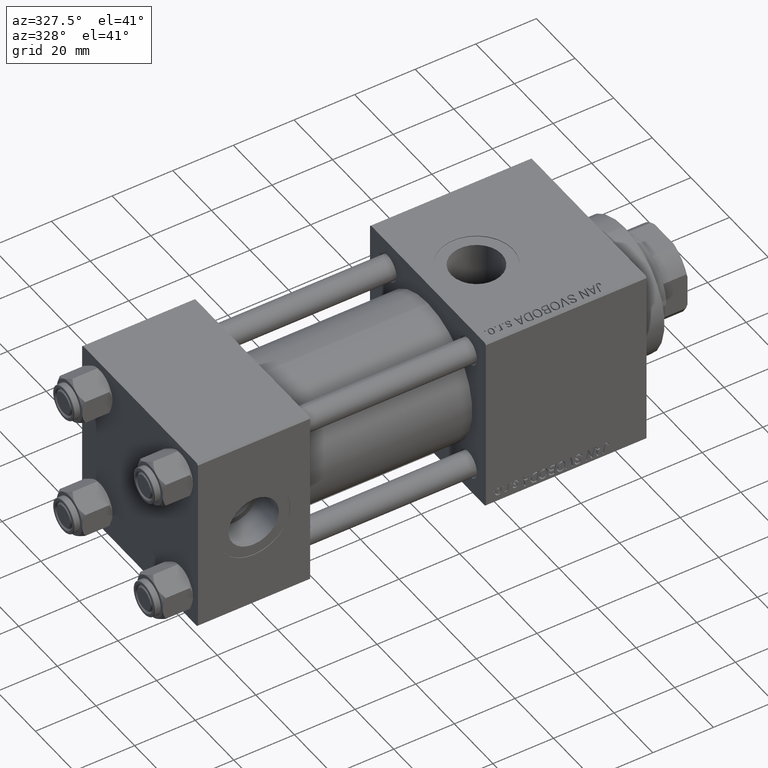
[diagram: clean part render]
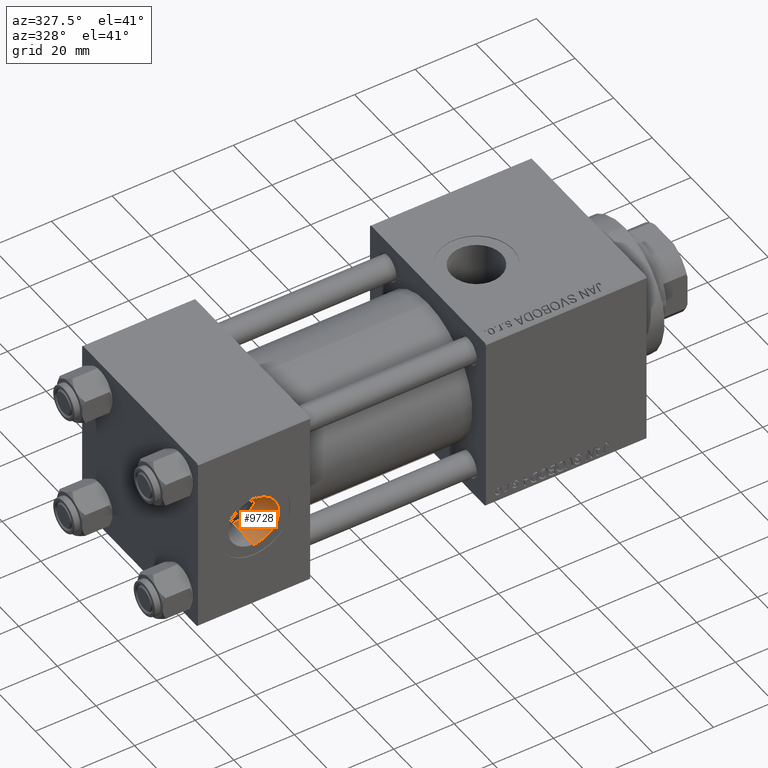
[diagram: same view with one face highlighted and labeled with its STEP entity id]
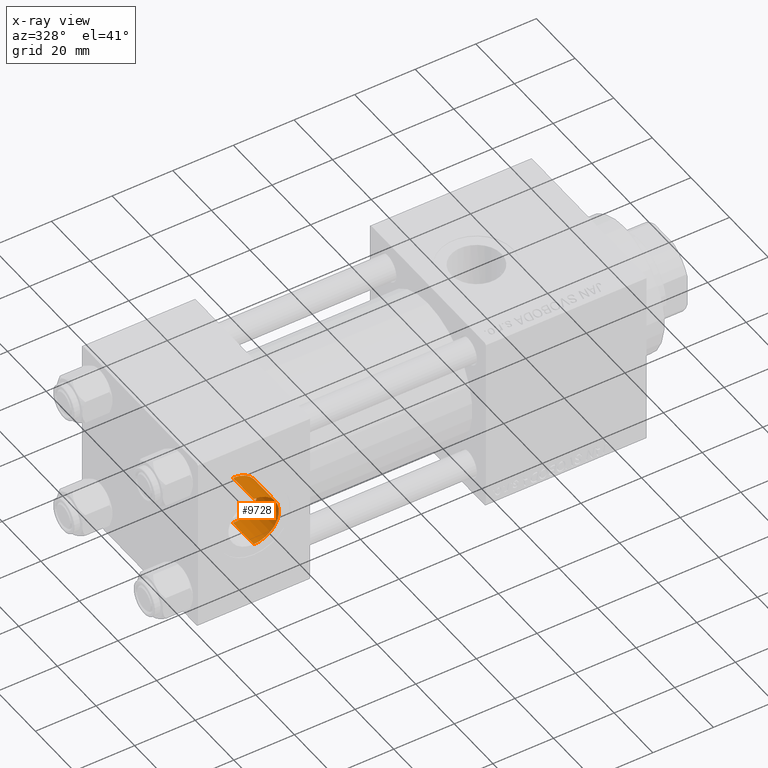
[diagram: x-ray of the same camera — body ghosted, the highlighted face saturated]
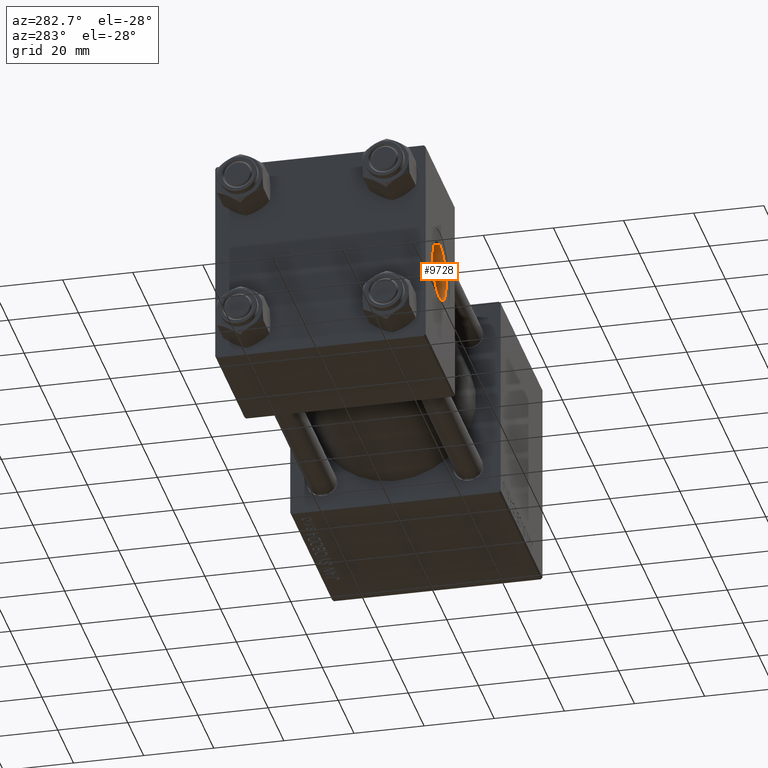
[diagram: same view with one face highlighted and labeled with its STEP entity id]
A machine part, auxiliary view. The second image highlights one B-rep face of the part: STEP entity #9728.
The next image is the same camera in x-ray: the body ghosted, the highlighted face saturated — about 0% of this face is hidden behind the body in this view.
A second angle (auxiliary view) of the same face is appended — the face is thin or edge-on in the first view.
In plain terms, the highlighted cylindrical surface (edge-blend (fillet) strip) has radius 8.33 mm, axis along (-0, -1, -0).
Its self-contained STEP definition (entity closure, byte-faithful):
#362 = CARTESIAN_POINT ( 'NONE',  ( 18.50000000000000000, -19.09999999999999787, 9.454242944073598665E-16 ) ) ;
#847 = CARTESIAN_POINT ( 'NONE',  ( 18.50000000000000000, -19.09999999999999787, 8.330000000000003624 ) ) ;
#1406 = EDGE_CURVE ( 'NONE', #42720, #17650, #49504, .T. ) ;
#2313 = ORIENTED_EDGE ( 'NONE', *, *, #1406, .F. ) ;
#3674 = CARTESIAN_POINT ( 'NONE',  ( 18.50000000000000000, -19.09999999999999787, -8.330000000000000071 ) ) ;
#3745 = DIRECTION ( 'NONE',  ( 0.000000000000000000, 0.000000000000000000, -1.000000000000000000 ) ) ;
#6205 = VECTOR ( 'NONE', #41679, 1000.000000000000000 ) ;
#9728 = ADVANCED_FACE ( 'NONE', ( #38252 ), #49200, .F. ) ;
#10481 = AXIS2_PLACEMENT_3D ( 'NONE', #362, #11794, #50133 ) ;
#10954 = AXIS2_PLACEMENT_3D ( 'NONE', #49241, #34238, #49754 ) ;
#11745 = CIRCLE ( 'NONE', #10954, 8.330000000000001847 ) ;
#11794 = DIRECTION ( 'NONE',  ( 0.000000000000000000, -1.000000000000000000, -8.673617379884036705E-17 ) ) ;
#12621 = EDGE_CURVE ( 'NONE', #16932, #17650, #11745, .T. ) ;
#16932 = VERTEX_POINT ( 'NONE', #42083 ) ;
#17212 = ORIENTED_EDGE ( 'NONE', *, *, #26892, .F. ) ;
#17650 = VERTEX_POINT ( 'NONE', #29273 ) ;
#18117 = ORIENTED_EDGE ( 'NONE', *, *, #20184, .T. ) ;
#20184 = EDGE_CURVE ( 'NONE', #40124, #16932, #42438, .T. ) ;
#21812 = DIRECTION ( 'NONE',  ( -0.000000000000000000, -1.000000000000000000, -8.673617379884036705E-17 ) ) ;
#22653 = CIRCLE ( 'NONE', #10481, 8.330000000000001847 ) ;
#25421 = AXIS2_PLACEMENT_3D ( 'NONE', #26067, #42060, #3745 ) ;
#26067 = CARTESIAN_POINT ( 'NONE',  ( 18.50000000000000000, -19.09999999999999787, 9.454242944073598665E-16 ) ) ;
#26701 = CARTESIAN_POINT ( 'NONE',  ( 18.50000000000000000, -19.09999999999999787, -8.330000000000000071 ) ) ;
#26892 = EDGE_CURVE ( 'NONE', #40124, #42720, #22653, .T. ) ;
#29273 = CARTESIAN_POINT ( 'NONE',  ( 18.50000000000000000, -29.80000000000000071, 8.330000000000001847 ) ) ;
#34238 = DIRECTION ( 'NONE',  ( 0.000000000000000000, -1.000000000000000000, -8.673617379884036705E-17 ) ) ;
#38252 = FACE_OUTER_BOUND ( 'NONE', #47954, .T. ) ;
#40124 = VERTEX_POINT ( 'NONE', #3674 ) ;
#40849 = CARTESIAN_POINT ( 'NONE',  ( 18.50000000000000000, -19.09999999999999787, 8.330000000000003624 ) ) ;
#41679 = DIRECTION ( 'NONE',  ( -0.000000000000000000, -1.000000000000000000, -8.673617379884036705E-17 ) ) ;
#42060 = DIRECTION ( 'NONE',  ( -0.000000000000000000, -1.000000000000000000, -8.673617379884036705E-17 ) ) ;
#42083 = CARTESIAN_POINT ( 'NONE',  ( 18.50000000000000000, -29.80000000000000071, -8.330000000000001847 ) ) ;
#42438 = LINE ( 'NONE', #26701, #6205 ) ;
#42720 = VERTEX_POINT ( 'NONE', #847 ) ;
#45523 = VECTOR ( 'NONE', #21812, 1000.000000000000000 ) ;
#47090 = ORIENTED_EDGE ( 'NONE', *, *, #12621, .T. ) ;
#47954 = EDGE_LOOP ( 'NONE', ( #2313, #17212, #18117, #47090 ) ) ;
#49200 = CYLINDRICAL_SURFACE ( 'NONE', #25421, 8.330000000000001847 ) ;
#49241 = CARTESIAN_POINT ( 'NONE',  ( 18.50000000000000000, -29.80000000000000071, 1.734723475976808635E-17 ) ) ;
#49504 = LINE ( 'NONE', #40849, #45523 ) ;
#49754 = DIRECTION ( 'NONE',  ( 0.000000000000000000, 0.000000000000000000, -1.000000000000000000 ) ) ;
#50133 = DIRECTION ( 'NONE',  ( 0.000000000000000000, 0.000000000000000000, -1.000000000000000000 ) ) ;